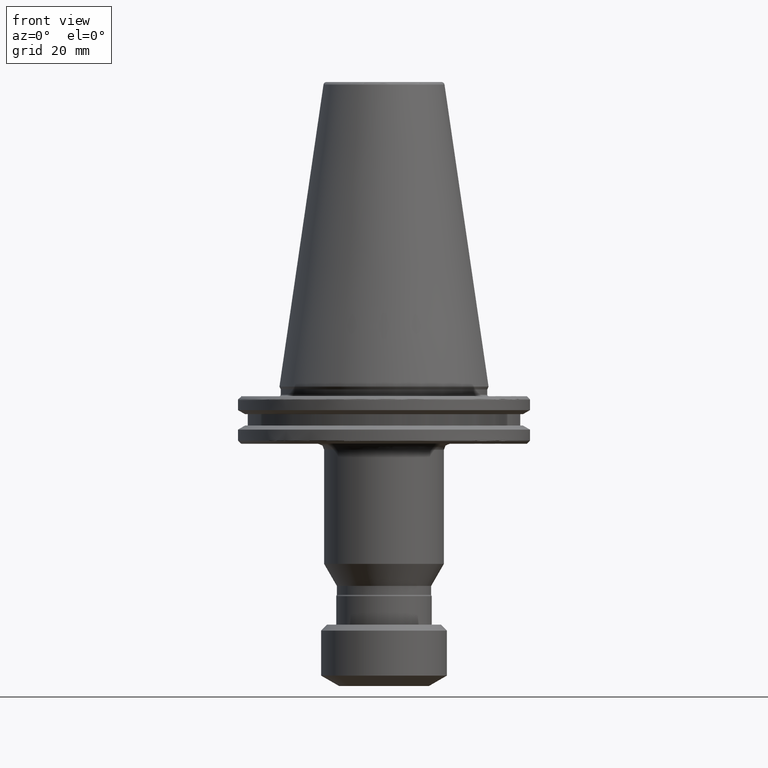
[diagram: clean part render]
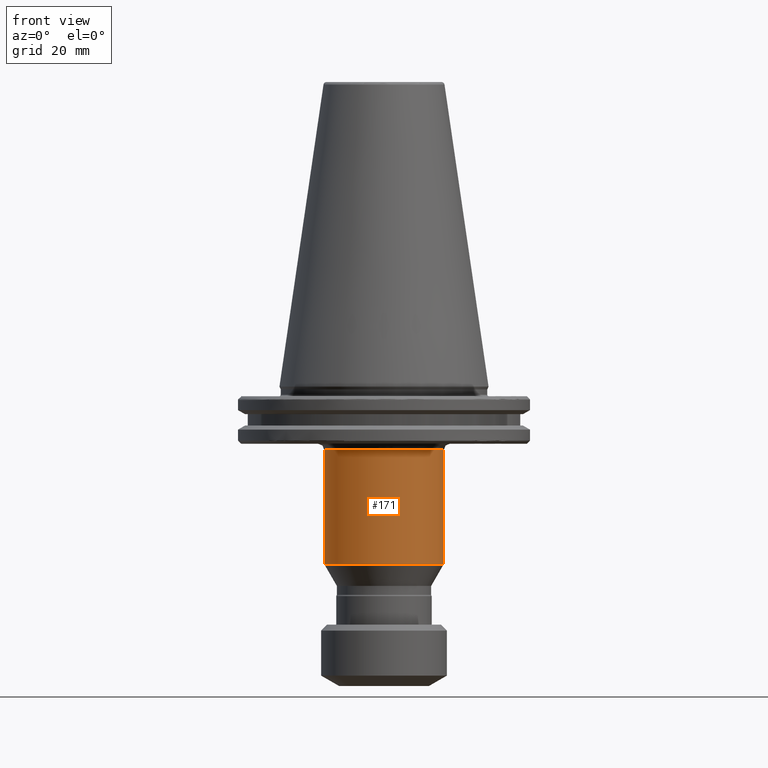
[diagram: same view with one face highlighted and labeled with its STEP entity id]
A machine part, front view. The second image highlights one B-rep face of the part: STEP entity #171.
In plain terms, the highlighted cylindrical surface (partial cylindrical patch) has radius 20 mm, axis along (0, 0, 1).
Its self-contained STEP definition (entity closure, byte-faithful):
#23 = DIRECTION ( 'NONE',  ( 0.0000000000000000000, 0.0000000000000000000, -1.000000000000000000 ) ) ;
#99 = AXIS2_PLACEMENT_3D ( 'NONE', #1031, #2884, #1301 ) ;
#171 = ADVANCED_FACE ( 'NONE', ( #1650 ), #2875, .T. ) ;
#222 = CARTESIAN_POINT ( 'NONE',  ( 20.00000000000000000, 0.0000000000000000000, -59.20988268373038500 ) ) ;
#337 = ORIENTED_EDGE ( 'NONE', *, *, #1270, .T. ) ;
#380 = DIRECTION ( 'NONE',  ( 1.000000000000000000, 0.0000000000000000000, 0.0000000000000000000 ) ) ;
#534 = VERTEX_POINT ( 'NONE', #222 ) ;
#627 = CARTESIAN_POINT ( 'NONE',  ( -19.99999999999999600, 2.449293598294706500E-015, -21.10000000000000900 ) ) ;
#727 = VERTEX_POINT ( 'NONE', #2212 ) ;
#834 = VERTEX_POINT ( 'NONE', #627 ) ;
#838 = LINE ( 'NONE', #1748, #2440 ) ;
#872 = EDGE_CURVE ( 'NONE', #727, #834, #838, .T. ) ;
#1031 = CARTESIAN_POINT ( 'NONE',  ( 0.0000000000000000000, 0.0000000000000000000, -59.20988268373038500 ) ) ;
#1061 = VERTEX_POINT ( 'NONE', #2486 ) ;
#1270 = EDGE_CURVE ( 'NONE', #534, #1061, #1287, .T. ) ;
#1287 = LINE ( 'NONE', #2626, #2017 ) ;
#1301 = DIRECTION ( 'NONE',  ( 1.000000000000000000, 0.0000000000000000000, 0.0000000000000000000 ) ) ;
#1650 = FACE_OUTER_BOUND ( 'NONE', #3146, .T. ) ;
#1658 = CARTESIAN_POINT ( 'NONE',  ( 0.0000000000000000000, 0.0000000000000000000, -21.10000000000000900 ) ) ;
#1748 = CARTESIAN_POINT ( 'NONE',  ( -20.00000000000000000, 2.449293598294706500E-015, 88.34764052968309000 ) ) ;
#1773 = CIRCLE ( 'NONE', #99, 20.00000000000000000 ) ;
#1813 = ORIENTED_EDGE ( 'NONE', *, *, #872, .F. ) ;
#1917 = AXIS2_PLACEMENT_3D ( 'NONE', #2551, #2327, #380 ) ;
#1933 = DIRECTION ( 'NONE',  ( -1.000000000000000000, 0.0000000000000000000, 0.0000000000000000000 ) ) ;
#2010 = DIRECTION ( 'NONE',  ( 0.0000000000000000000, 0.0000000000000000000, 1.000000000000000000 ) ) ;
#2017 = VECTOR ( 'NONE', #2890, 1000.000000000000000 ) ;
#2116 = ORIENTED_EDGE ( 'NONE', *, *, #2592, .T. ) ;
#2212 = CARTESIAN_POINT ( 'NONE',  ( -20.00000000000000000, 2.449293598294706500E-015, -59.20988268373038500 ) ) ;
#2297 = AXIS2_PLACEMENT_3D ( 'NONE', #1658, #23, #1933 ) ;
#2327 = DIRECTION ( 'NONE',  ( 0.0000000000000000000, 0.0000000000000000000, 1.000000000000000000 ) ) ;
#2344 = ORIENTED_EDGE ( 'NONE', *, *, #2985, .T. ) ;
#2440 = VECTOR ( 'NONE', #2010, 1000.000000000000000 ) ;
#2486 = CARTESIAN_POINT ( 'NONE',  ( 19.99999999999999600, 0.0000000000000000000, -21.10000000000000900 ) ) ;
#2551 = CARTESIAN_POINT ( 'NONE',  ( 0.0000000000000000000, 0.0000000000000000000, 88.34764052968309000 ) ) ;
#2592 = EDGE_CURVE ( 'NONE', #727, #534, #1773, .T. ) ;
#2626 = CARTESIAN_POINT ( 'NONE',  ( 20.00000000000000000, 0.0000000000000000000, 88.34764052968309000 ) ) ;
#2789 = CIRCLE ( 'NONE', #2297, 19.99999999999999600 ) ;
#2875 = CYLINDRICAL_SURFACE ( 'NONE', #1917, 20.00000000000000000 ) ;
#2884 = DIRECTION ( 'NONE',  ( 0.0000000000000000000, 0.0000000000000000000, 1.000000000000000000 ) ) ;
#2890 = DIRECTION ( 'NONE',  ( 0.0000000000000000000, 0.0000000000000000000, 1.000000000000000000 ) ) ;
#2985 = EDGE_CURVE ( 'NONE', #1061, #834, #2789, .T. ) ;
#3146 = EDGE_LOOP ( 'NONE', ( #1813, #2116, #337, #2344 ) ) ;